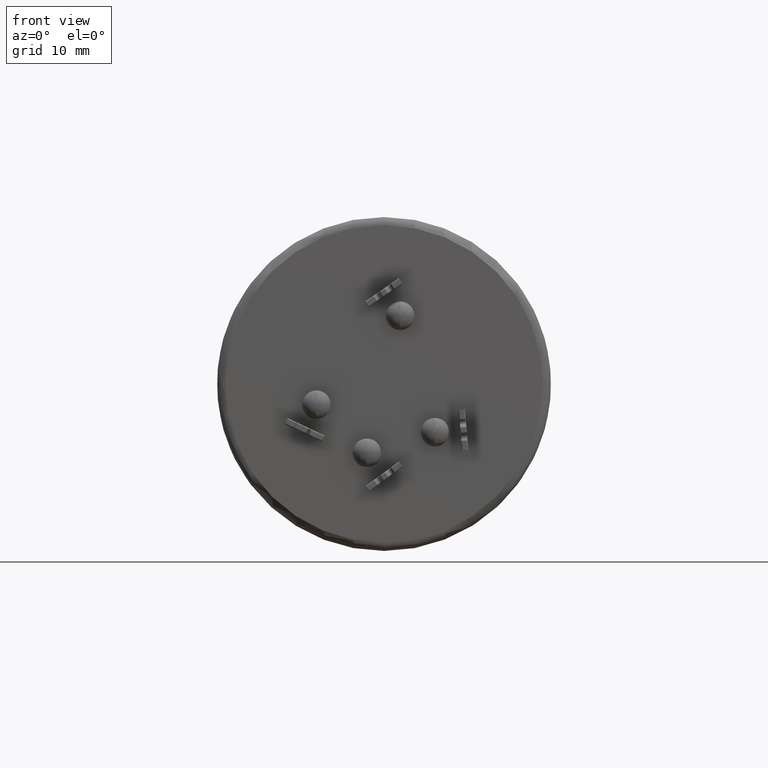
[diagram: clean part render]
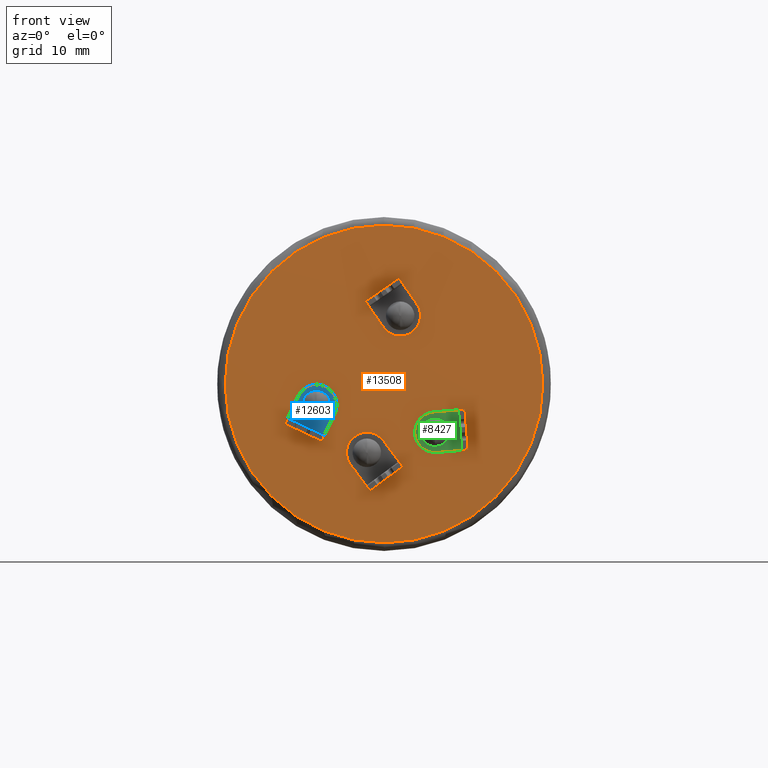
[diagram: same view with three faces highlighted in distinct colors, each labeled with its STEP entity id]
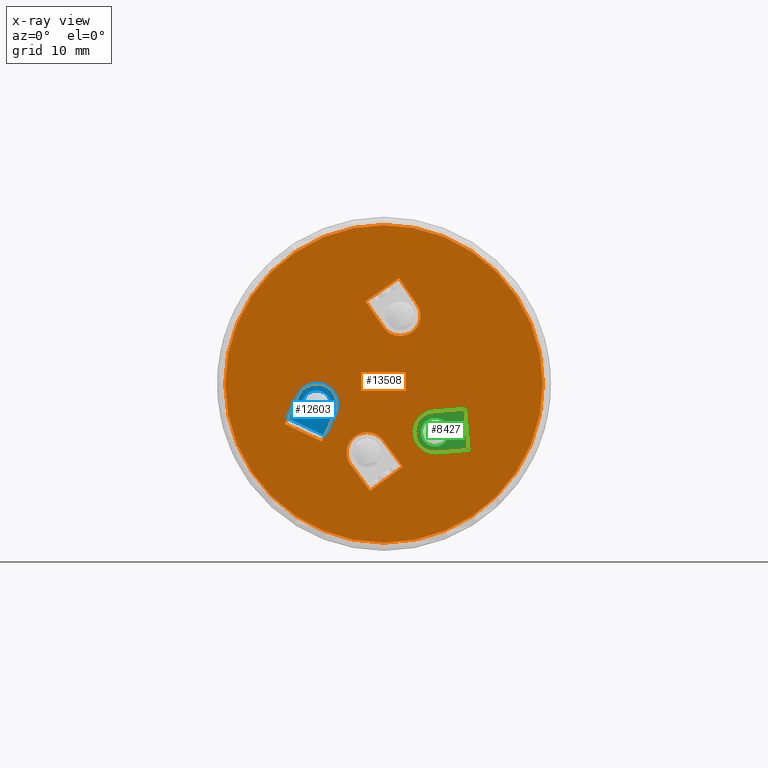
[diagram: x-ray of the same camera — body ghosted, the three highlighted faces saturated]
A machine part, front view with three faces highlighted in distinct colors.
The next image is the same camera in x-ray (body ghosted, the three faces saturated) — at least one of them is partly hidden behind the body in this view.
Their STEP definitions:

[orange] entity #13508 — the highlighted planar face has unit normal (0, 1, 0).
#131 = CARTESIAN_POINT ( 'NONE',  ( -0.06408212101408636300, 0.0000000000000000000, 6.957453593650186000 ) ) ;
#266 = CARTESIAN_POINT ( 'NONE',  ( 2.449293598294706500E-015, 0.0000000000000000000, -19.50000000000000000 ) ) ;
#387 = CARTESIAN_POINT ( 'NONE',  ( 6.472273971103110300, 0.0000000000000000000, -8.405985840910089400 ) ) ;
#410 = DIRECTION ( 'NONE',  ( 0.0000000000000000000, -1.000000000000000000, 0.0000000000000000000 ) ) ;
#431 = VECTOR ( 'NONE', #6212, 1000.000000000000100 ) ;
#448 = CARTESIAN_POINT ( 'NONE',  ( 6.264818621746156800, 0.0000000000000000000, -5.914608254508701500 ) ) ;
#458 = DIRECTION ( 'NONE',  ( -0.9965510345605536100, 0.0000000000000000000, -0.08298213974278138800 ) ) ;
#585 = CARTESIAN_POINT ( 'NONE',  ( 0.0000000000000000000, 0.0000000000000000000, 0.0000000000000000000 ) ) ;
#872 = ORIENTED_EDGE ( 'NONE', *, *, #6539, .T. ) ;
#947 = EDGE_CURVE ( 'NONE', #1280, #6693, #10238, .T. ) ;
#1214 = CARTESIAN_POINT ( 'NONE',  ( -7.652266703763484800, 0.0000000000000000000, -7.053288660947412600 ) ) ;
#1280 = VERTEX_POINT ( 'NONE', #3293 ) ;
#1334 = AXIS2_PLACEMENT_3D ( 'NONE', #448, #410, #6989 ) ;
#1336 = LINE ( 'NONE', #9434, #3736 ) ;
#1345 = VERTEX_POINT ( 'NONE', #10166 ) ;
#1599 = VERTEX_POINT ( 'NONE', #3064 ) ;
#1616 = DIRECTION ( 'NONE',  ( 0.0000000000000000000, -0.0000000000000000000, 1.000000000000000000 ) ) ;
#1706 = CARTESIAN_POINT ( 'NONE',  ( 1.827519730639549400, -0.009998749999999693600, 13.00516054748049300 ) ) ;
#1883 = CARTESIAN_POINT ( 'NONE',  ( 2.285341713860584300, 0.0000000000000000000, 12.34910920548319700 ) ) ;
#1938 = VECTOR ( 'NONE', #13261, 1000.000000000000000 ) ;
#2034 = FACE_BOUND ( 'NONE', #8239, .T. ) ;
#2051 = AXIS2_PLACEMENT_3D ( 'NONE', #8099, #3659, #1616 ) ;
#2066 = VERTEX_POINT ( 'NONE', #7197 ) ;
#2081 = EDGE_LOOP ( 'NONE', ( #10167, #8587 ) ) ;
#2098 = ORIENTED_EDGE ( 'NONE', *, *, #4695, .T. ) ;
#2108 = ORIENTED_EDGE ( 'NONE', *, *, #7376, .F. ) ;
#2181 = CARTESIAN_POINT ( 'NONE',  ( 10.34885749554366500, 0.0000000000000000000, -8.083185317310674000 ) ) ;
#2306 = EDGE_CURVE ( 'NONE', #3951, #14063, #8235, .T. ) ;
#2314 = DIRECTION ( 'NONE',  ( 0.0000000000000000000, -1.000000000000000000, 0.0000000000000000000 ) ) ;
#2320 = ORIENTED_EDGE ( 'NONE', *, *, #2598, .F. ) ;
#2327 = DIRECTION ( 'NONE',  ( -0.8043756352700843800, 0.0000000000000000000, -0.5941210629020387000 ) ) ;
#2479 = EDGE_CURVE ( 'NONE', #8894, #9044, #2771, .T. ) ;
#2598 = EDGE_CURVE ( 'NONE', #12933, #11965, #13540, .T. ) ;
#2631 = VECTOR ( 'NONE', #2977, 1000.000000000000100 ) ;
#2771 = LINE ( 'NONE', #12374, #7182 ) ;
#2977 = DIRECTION ( 'NONE',  ( -0.5941210629020401400, 0.0000000000000000000, 0.8043756352700832700 ) ) ;
#3054 = CARTESIAN_POINT ( 'NONE',  ( -2.096736182342360300, 0.0000000000000000000, -8.442727574712751700 ) ) ;
#3064 = CARTESIAN_POINT ( 'NONE',  ( 2.010939949443617100, -0.0000000000000000000, -9.764695884550336700 ) ) ;
#3127 = ORIENTED_EDGE ( 'NONE', *, *, #11157, .F. ) ;
#3247 = CARTESIAN_POINT ( 'NONE',  ( 2.309730510217753400, 0.0000000000000000000, -10.16222450795848300 ) ) ;
#3293 = CARTESIAN_POINT ( 'NONE',  ( -12.00403663422087200, 0.0000000000000000000, -4.558605531232906600 ) ) ;
#3443 = CARTESIAN_POINT ( 'NONE',  ( -7.481760901799101600, 0.0000000000000000000, -6.691449219820790400 ) ) ;
#3447 = EDGE_CURVE ( 'NONE', #10387, #8216, #10046, .T. ) ;
#3462 = CARTESIAN_POINT ( 'NONE',  ( 5.671779899656733900, -0.0000000000000000000, -7.678976297547496400 ) ) ;
#3607 = CIRCLE ( 'NONE', #10930, 2.518743273238326400 ) ;
#3646 = DIRECTION ( 'NONE',  ( -0.9965510345605536100, 0.0000000000000000000, -0.08298213974278047200 ) ) ;
#3659 = DIRECTION ( 'NONE',  ( 0.0000000000000000000, 1.000000000000000000, 0.0000000000000000000 ) ) ;
#3702 = CIRCLE ( 'NONE', #12365, 19.50000000000000000 ) ;
#3736 = VECTOR ( 'NONE', #4936, 1000.000000000000000 ) ;
#3785 = ORIENTED_EDGE ( 'NONE', *, *, #9891, .F. ) ;
#3817 = CARTESIAN_POINT ( 'NONE',  ( -0.06254256008456776600, 0.0000000000000000000, -6.957424917457657000 ) ) ;
#3859 = CARTESIAN_POINT ( 'NONE',  ( -2.281927337025110500, 0.0000000000000000000, 10.15327314390908800 ) ) ;
#3886 = EDGE_CURVE ( 'NONE', #2066, #13461, #3702, .T. ) ;
#3951 = VERTEX_POINT ( 'NONE', #3247 ) ;
#4060 = CARTESIAN_POINT ( 'NONE',  ( 0.0000000000000000000, 0.0000000000000000000, 0.0000000000000000000 ) ) ;
#4136 = LINE ( 'NONE', #6553, #12540 ) ;
#4138 = DIRECTION ( 'NONE',  ( 0.0000000000000000000, -1.000000000000000000, 0.0000000000000000000 ) ) ;
#4183 = LINE ( 'NONE', #8243, #5216 ) ;
#4404 = VECTOR ( 'NONE', #7159, 999.9999999999998900 ) ;
#4577 = CIRCLE ( 'NONE', #1334, 2.499999999999999600 ) ;
#4695 = EDGE_CURVE ( 'NONE', #10953, #11759, #10493, .T. ) ;
#4713 = EDGE_CURVE ( 'NONE', #1280, #10595, #4136, .T. ) ;
#4787 = EDGE_CURVE ( 'NONE', #14063, #5055, #4821, .T. ) ;
#4821 = LINE ( 'NONE', #11263, #1938 ) ;
#4936 = DIRECTION ( 'NONE',  ( -0.6008285975442571000, 0.0000000000000000000, 0.7993778808379683500 ) ) ;
#5055 = VERTEX_POINT ( 'NONE', #11773 ) ;
#5083 = FACE_BOUND ( 'NONE', #10452, .T. ) ;
#5151 = CARTESIAN_POINT ( 'NONE',  ( -1.715493642634970700, 0.0000000000000000000, -13.13530119906044100 ) ) ;
#5196 = ORIENTED_EDGE ( 'NONE', *, *, #947, .F. ) ;
#5216 = VECTOR ( 'NONE', #13711, 1000.000000000000100 ) ;
#5236 = CARTESIAN_POINT ( 'NONE',  ( 4.043655090115611200, 0.0000000000000000000, 9.808154385438138300 ) ) ;
#5430 = CIRCLE ( 'NONE', #12765, 2.500000000000002200 ) ;
#5431 = ORIENTED_EDGE ( 'NONE', *, *, #9255, .F. ) ;
#5563 = LINE ( 'NONE', #6461, #10723 ) ;
#5571 = CARTESIAN_POINT ( 'NONE',  ( -5.497527441997073400, -0.0000000000000000000, 7.921700554386986500 ) ) ;
#5595 = CIRCLE ( 'NONE', #6429, 19.50000000000000000 ) ;
#5620 = VECTOR ( 'NONE', #11403, 1000.000000000000100 ) ;
#5760 = EDGE_CURVE ( 'NONE', #5997, #13594, #12652, .T. ) ;
#5784 = CARTESIAN_POINT ( 'NONE',  ( -2.096736182342360300, 0.0000000000000000000, -5.923984301474424900 ) ) ;
#5825 = ORIENTED_EDGE ( 'NONE', *, *, #6042, .F. ) ;
#5844 = EDGE_LOOP ( 'NONE', ( #5431, #10585, #10145, #10497, #3785, #2320 ) ) ;
#5901 = DIRECTION ( 'NONE',  ( 0.0000000000000000000, -1.000000000000000000, 0.0000000000000000000 ) ) ;
#5958 = EDGE_CURVE ( 'NONE', #3951, #1599, #1336, .T. ) ;
#5968 = CARTESIAN_POINT ( 'NONE',  ( -2.096736182342360300, 0.0000000000000000000, -8.442727574712751700 ) ) ;
#5997 = VERTEX_POINT ( 'NONE', #3859 ) ;
#6002 = VERTEX_POINT ( 'NONE', #8233 ) ;
#6042 = EDGE_CURVE ( 'NONE', #12361, #9915, #5430, .T. ) ;
#6066 = ORIENTED_EDGE ( 'NONE', *, *, #10488, .F. ) ;
#6212 = DIRECTION ( 'NONE',  ( 0.5701401583575898000, 0.0000000000000000000, -0.8215474422259389000 ) ) ;
#6246 = VECTOR ( 'NONE', #14035, 1000.000000000000000 ) ;
#6368 = CARTESIAN_POINT ( 'NONE',  ( 7.323337316101660800, 0.0000000000000000000, 5.082273381310050000 ) ) ;
#6429 = AXIS2_PLACEMENT_3D ( 'NONE', #585, #7170, #10396 ) ;
#6461 = CARTESIAN_POINT ( 'NONE',  ( -3.538729696344269800, -0.0000000000000000000, 1.668973265905776100 ) ) ;
#6505 = ORIENTED_EDGE ( 'NONE', *, *, #3447, .F. ) ;
#6539 = EDGE_CURVE ( 'NONE', #13594, #1345, #7458, .T. ) ;
#6553 = CARTESIAN_POINT ( 'NONE',  ( -8.061005428766039300, -0.0000000000000000000, 3.801816954493660600 ) ) ;
#6607 = EDGE_CURVE ( 'NONE', #10953, #10387, #5563, .T. ) ;
#6609 = CIRCLE ( 'NONE', #6833, 2.500000033163329400 ) ;
#6619 = EDGE_CURVE ( 'NONE', #1345, #9915, #7800, .T. ) ;
#6626 = DIRECTION ( 'NONE',  ( 0.8215474422259387800, 0.0000000000000000000, 0.5701401583575900200 ) ) ;
#6638 = CARTESIAN_POINT ( 'NONE',  ( -8.286320270605701300, 0.0000000000000000000, -2.536639029759266700 ) ) ;
#6693 = VERTEX_POINT ( 'NONE', #8466 ) ;
#6833 = AXIS2_PLACEMENT_3D ( 'NONE', #13622, #5901, #7084 ) ;
#6989 = DIRECTION ( 'NONE',  ( 0.0000000000000000000, 0.0000000000000000000, -1.000000000000000000 ) ) ;
#7084 = DIRECTION ( 'NONE',  ( 0.0000000000000000000, 0.0000000000000000000, -1.000000000000000000 ) ) ;
#7156 = CARTESIAN_POINT ( 'NONE',  ( -10.54728443551130500, -0.0000000000000000000, -1.469848885996513300 ) ) ;
#7159 = DIRECTION ( 'NONE',  ( -0.4267765007266978700, 0.0000000000000000000, -0.9043571299146565500 ) ) ;
#7170 = DIRECTION ( 'NONE',  ( -0.0000000000000000000, -1.000000000000000000, -0.0000000000000000000 ) ) ;
#7182 = VECTOR ( 'NONE', #3646, 1000.000000000000000 ) ;
#7197 = CARTESIAN_POINT ( 'NONE',  ( 0.0000000000000000000, 0.0000000000000000000, 19.50000000000000000 ) ) ;
#7232 = CARTESIAN_POINT ( 'NONE',  ( -8.286320270605701300, 0.0000000000000000000, -0.03663899659593714700 ) ) ;
#7258 = CARTESIAN_POINT ( 'NONE',  ( -3.365395365941289600, -0.0000000000000000000, -2.485719587002766900 ) ) ;
#7314 = DIRECTION ( 'NONE',  ( 0.0000000000000000000, 0.0000000000000000000, -1.000000000000000000 ) ) ;
#7376 = EDGE_CURVE ( 'NONE', #6002, #9044, #4577, .T. ) ;
#7397 = CARTESIAN_POINT ( 'NONE',  ( 3.215600104971960700, 0.0000000000000000000, 2.231572589522097200 ) ) ;
#7458 = LINE ( 'NONE', #1883, #431 ) ;
#7501 = LINE ( 'NONE', #13548, #5620 ) ;
#7577 = VECTOR ( 'NONE', #11985, 999.9999999999998900 ) ;
#7585 = DIRECTION ( 'NONE',  ( 0.0000000000000000000, -1.000000000000000000, 0.0000000000000000000 ) ) ;
#7734 = ORIENTED_EDGE ( 'NONE', *, *, #6607, .F. ) ;
#7800 = LINE ( 'NONE', #6368, #6246 ) ;
#8099 = CARTESIAN_POINT ( 'NONE',  ( 0.0000000000000000000, 0.0000000000000000000, 0.0000000000000000000 ) ) ;
#8161 = ORIENTED_EDGE ( 'NONE', *, *, #13011, .F. ) ;
#8178 = EDGE_CURVE ( 'NONE', #8894, #8390, #4183, .T. ) ;
#8216 = VERTEX_POINT ( 'NONE', #7232 ) ;
#8233 = CARTESIAN_POINT ( 'NONE',  ( 6.057363272389348000, 0.0000000000000000000, -3.423230668107305700 ) ) ;
#8235 = LINE ( 'NONE', #3462, #13726 ) ;
#8239 = EDGE_LOOP ( 'NONE', ( #10641, #9800, #872, #10939, #5825 ) ) ;
#8243 = CARTESIAN_POINT ( 'NONE',  ( 9.609148309813411600, 0.0000000000000000000, 0.8001473684743736200 ) ) ;
#8295 = CARTESIAN_POINT ( 'NONE',  ( 0.3247984870163504500, -0.0000000000000000000, -3.900577512982283100 ) ) ;
#8390 = VERTEX_POINT ( 'NONE', #13238 ) ;
#8466 = CARTESIAN_POINT ( 'NONE',  ( -12.17474723451155100, -0.0000000000000000000, -4.920348383198779100 ) ) ;
#8587 = ORIENTED_EDGE ( 'NONE', *, *, #13588, .T. ) ;
#8640 = CARTESIAN_POINT ( 'NONE',  ( -3.542103218458518800, 0.0000000000000000000, 1.669108121611721600 ) ) ;
#8729 = DIRECTION ( 'NONE',  ( 0.4265687377175767000, 0.0000000000000000000, 0.9044551464843534300 ) ) ;
#8746 = ORIENTED_EDGE ( 'NONE', *, *, #4713, .T. ) ;
#8894 = VERTEX_POINT ( 'NONE', #2181 ) ;
#9044 = VERTEX_POINT ( 'NONE', #387 ) ;
#9208 = CARTESIAN_POINT ( 'NONE',  ( -6.025356105700097100, -0.0000000000000000000, -3.603429173522018700 ) ) ;
#9255 = EDGE_CURVE ( 'NONE', #1599, #12933, #12063, .T. ) ;
#9434 = CARTESIAN_POINT ( 'NONE',  ( -3.404876235687164700, -0.0000000000000000000, -2.559173905781808100 ) ) ;
#9484 = DIRECTION ( 'NONE',  ( 0.0000000000000000000, 0.0000000000000000000, -1.000000000000000000 ) ) ;
#9662 = AXIS2_PLACEMENT_3D ( 'NONE', #5968, #10738, #7314 ) ;
#9725 = CARTESIAN_POINT ( 'NONE',  ( 1.989786484550760000, 0.0000000000000000000, 8.382803989544161300 ) ) ;
#9739 = LINE ( 'NONE', #8295, #13677 ) ;
#9760 = DIRECTION ( 'NONE',  ( 0.4265687377175766400, 0.0000000000000000000, 0.9044551464843534300 ) ) ;
#9800 = ORIENTED_EDGE ( 'NONE', *, *, #5760, .T. ) ;
#9891 = EDGE_CURVE ( 'NONE', #11965, #5055, #3607, .T. ) ;
#9915 = VERTEX_POINT ( 'NONE', #5236 ) ;
#10046 = CIRCLE ( 'NONE', #12714, 2.500000033163329400 ) ;
#10094 = LINE ( 'NONE', #7397, #10426 ) ;
#10145 = ORIENTED_EDGE ( 'NONE', *, *, #2306, .T. ) ;
#10164 = PLANE ( 'NONE',  #2051 ) ;
#10166 = CARTESIAN_POINT ( 'NONE',  ( 2.283631857325621400, -0.007499999999999718700, 12.34792259369974200 ) ) ;
#10167 = ORIENTED_EDGE ( 'NONE', *, *, #3886, .T. ) ;
#10238 = LINE ( 'NONE', #10428, #4404 ) ;
#10387 = VERTEX_POINT ( 'NONE', #9208 ) ;
#10396 = DIRECTION ( 'NONE',  ( 0.0000000000000000000, 0.0000000000000000000, 1.000000000000000000 ) ) ;
#10426 = VECTOR ( 'NONE', #10620, 999.9999999999998900 ) ;
#10428 = CARTESIAN_POINT ( 'NONE',  ( -8.058211263844391700, 0.0000000000000000000, 3.802762306550855800 ) ) ;
#10452 = EDGE_LOOP ( 'NONE', ( #7734, #2098, #6066, #5196, #8746, #3127, #6505 ) ) ;
#10488 = EDGE_CURVE ( 'NONE', #6693, #11759, #7501, .T. ) ;
#10493 = LINE ( 'NONE', #8640, #7577 ) ;
#10497 = ORIENTED_EDGE ( 'NONE', *, *, #4787, .T. ) ;
#10585 = ORIENTED_EDGE ( 'NONE', *, *, #5958, .F. ) ;
#10595 = VERTEX_POINT ( 'NONE', #7156 ) ;
#10620 = DIRECTION ( 'NONE',  ( 0.5701401583575894700, 0.0000000000000000000, -0.8215474422259392300 ) ) ;
#10641 = ORIENTED_EDGE ( 'NONE', *, *, #13150, .F. ) ;
#10723 = VECTOR ( 'NONE', #9760, 1000.000000000000100 ) ;
#10738 = DIRECTION ( 'NONE',  ( 0.0000000000000000000, -1.000000000000000000, 0.0000000000000000000 ) ) ;
#10879 = EDGE_LOOP ( 'NONE', ( #8161, #10979, #10895, #2108 ) ) ;
#10895 = ORIENTED_EDGE ( 'NONE', *, *, #2479, .T. ) ;
#10930 = AXIS2_PLACEMENT_3D ( 'NONE', #3054, #4138, #11811 ) ;
#10939 = ORIENTED_EDGE ( 'NONE', *, *, #6619, .T. ) ;
#10942 = FACE_OUTER_BOUND ( 'NONE', #2081, .T. ) ;
#10953 = VERTEX_POINT ( 'NONE', #3443 ) ;
#10979 = ORIENTED_EDGE ( 'NONE', *, *, #8178, .F. ) ;
#11131 = VECTOR ( 'NONE', #6626, 1000.000000000000100 ) ;
#11157 = EDGE_CURVE ( 'NONE', #8216, #10595, #6609, .T. ) ;
#11263 = CARTESIAN_POINT ( 'NONE',  ( -7.387273542291705300, -0.0000000000000000000, -5.456324901512950900 ) ) ;
#11403 = DIRECTION ( 'NONE',  ( 0.9044551464843534300, 0.0000000000000000000, -0.4265687377175765800 ) ) ;
#11759 = VERTEX_POINT ( 'NONE', #1214 ) ;
#11773 = CARTESIAN_POINT ( 'NONE',  ( -3.835542363001984300, 0.0000000000000000000, -10.26498462095601400 ) ) ;
#11797 = FACE_BOUND ( 'NONE', #10879, .T. ) ;
#11811 = DIRECTION ( 'NONE',  ( 0.0000000000000000000, 0.0000000000000000000, -1.000000000000000000 ) ) ;
#11965 = VERTEX_POINT ( 'NONE', #5784 ) ;
#11985 = DIRECTION ( 'NONE',  ( -0.4262644920453044800, 0.0000000000000000000, -0.9045985755136687300 ) ) ;
#12063 = LINE ( 'NONE', #7258, #2631 ) ;
#12172 = DIRECTION ( 'NONE',  ( 0.0000000000000000000, 0.0000000000000000000, -1.000000000000000000 ) ) ;
#12361 = VERTEX_POINT ( 'NONE', #131 ) ;
#12365 = AXIS2_PLACEMENT_3D ( 'NONE', #4060, #13969, #14007 ) ;
#12374 = CARTESIAN_POINT ( 'NONE',  ( 0.7397091857302486900, -0.0000000000000000000, -8.883332685785045900 ) ) ;
#12540 = VECTOR ( 'NONE', #8729, 1000.000000000000000 ) ;
#12652 = LINE ( 'NONE', #5571, #11131 ) ;
#12714 = AXIS2_PLACEMENT_3D ( 'NONE', #6638, #2314, #12172 ) ;
#12765 = AXIS2_PLACEMENT_3D ( 'NONE', #9725, #7585, #9484 ) ;
#12933 = VERTEX_POINT ( 'NONE', #3817 ) ;
#13011 = EDGE_CURVE ( 'NONE', #8390, #6002, #9739, .T. ) ;
#13150 = EDGE_CURVE ( 'NONE', #5997, #12361, #10094, .T. ) ;
#13238 = CARTESIAN_POINT ( 'NONE',  ( 9.933946796829758300, 0.0000000000000000000, -3.100430144507904100 ) ) ;
#13261 = DIRECTION ( 'NONE',  ( -0.5941210629020390300, 0.0000000000000000000, 0.8043756352700841500 ) ) ;
#13461 = VERTEX_POINT ( 'NONE', #266 ) ;
#13508 = ADVANCED_FACE ( 'NONE', ( #2034, #14010, #10942, #5083, #11797 ), #10164, .F. ) ;
#13540 = CIRCLE ( 'NONE', #9662, 2.518743273238326400 ) ;
#13548 = CARTESIAN_POINT ( 'NONE',  ( -4.113658696039626900, -0.0000000000000000000, -8.722204534774206800 ) ) ;
#13588 = EDGE_CURVE ( 'NONE', #13461, #2066, #5595, .T. ) ;
#13594 = VERTEX_POINT ( 'NONE', #1706 ) ;
#13622 = CARTESIAN_POINT ( 'NONE',  ( -8.286320270605701300, 0.0000000000000000000, -2.536639029759266700 ) ) ;
#13677 = VECTOR ( 'NONE', #458, 999.9999999999998900 ) ;
#13711 = DIRECTION ( 'NONE',  ( -0.08298213974278069400, 0.0000000000000000000, 0.9965510345605536100 ) ) ;
#13726 = VECTOR ( 'NONE', #2327, 1000.000000000000000 ) ;
#13969 = DIRECTION ( 'NONE',  ( -0.0000000000000000000, -1.000000000000000000, -0.0000000000000000000 ) ) ;
#14007 = DIRECTION ( 'NONE',  ( 0.0000000000000000000, 0.0000000000000000000, 1.000000000000000000 ) ) ;
#14010 = FACE_BOUND ( 'NONE', #5844, .T. ) ;
#14035 = DIRECTION ( 'NONE',  ( 0.5701401583575896900, 0.0000000000000000000, -0.8215474422259390100 ) ) ;
#14063 = VERTEX_POINT ( 'NONE', #5151 ) ;

[blue] entity #12603 — the highlighted planar face has unit normal (0, -1, 0).
#93 = ORIENTED_EDGE ( 'NONE', *, *, #4311, .F. ) ;
#103 = VERTEX_POINT ( 'NONE', #13936 ) ;
#234 = VERTEX_POINT ( 'NONE', #978 ) ;
#372 = DIRECTION ( 'NONE',  ( 0.0000000000000000000, 0.0000000000000000000, -1.000000000000000000 ) ) ;
#789 = DIRECTION ( 'NONE',  ( 0.4265687377175767000, 0.0000000000000000000, 0.9044551464843534300 ) ) ;
#978 = CARTESIAN_POINT ( 'NONE',  ( -7.311133402209836000, -0.009999999999999694900, -6.329667151680946600 ) ) ;
#1035 = CARTESIAN_POINT ( 'NONE',  ( -11.83348944847778700, -0.01000000000000000000, -4.196785584624329600 ) ) ;
#1064 = FACE_OUTER_BOUND ( 'NONE', #12715, .T. ) ;
#1216 = CARTESIAN_POINT ( 'NONE',  ( -10.54728443551130500, -0.01000000000000000000, -1.469848885996513300 ) ) ;
#1263 = CIRCLE ( 'NONE', #2475, 1.749999999999999800 ) ;
#1391 = EDGE_CURVE ( 'NONE', #3994, #2301, #6932, .T. ) ;
#1452 = VECTOR ( 'NONE', #5220, 1000.000000000000100 ) ;
#1594 = AXIS2_PLACEMENT_3D ( 'NONE', #8755, #6437, #6477 ) ;
#1632 = DIRECTION ( 'NONE',  ( 0.0000000000000000000, -0.0000000000000000000, -1.000000000000000000 ) ) ;
#1887 = VECTOR ( 'NONE', #6800, 1000.000000000000000 ) ;
#2229 = LINE ( 'NONE', #1035, #1887 ) ;
#2301 = VERTEX_POINT ( 'NONE', #1216 ) ;
#2475 = AXIS2_PLACEMENT_3D ( 'NONE', #13553, #4742, #4779 ) ;
#2562 = CARTESIAN_POINT ( 'NONE',  ( -8.286320270605701300, -0.01000000000000000000, -0.03663899659593714700 ) ) ;
#3165 = DIRECTION ( 'NONE',  ( 0.0000000000000000000, 0.0000000000000000000, -1.000000000000000000 ) ) ;
#3253 = VERTEX_POINT ( 'NONE', #9416 ) ;
#3621 = ORIENTED_EDGE ( 'NONE', *, *, #10018, .F. ) ;
#3994 = VERTEX_POINT ( 'NONE', #6386 ) ;
#4311 = EDGE_CURVE ( 'NONE', #12754, #103, #1263, .T. ) ;
#4742 = DIRECTION ( 'NONE',  ( 0.0000000000000000000, -1.000000000000000000, 0.0000000000000000000 ) ) ;
#4779 = DIRECTION ( 'NONE',  ( 0.0000000000000000000, 0.0000000000000000000, -1.000000000000000000 ) ) ;
#5081 = CARTESIAN_POINT ( 'NONE',  ( -8.061005428766039300, -0.01000000000000000000, 3.801816954493660600 ) ) ;
#5220 = DIRECTION ( 'NONE',  ( 0.4265687377175766400, 0.0000000000000000000, 0.9044551464843534300 ) ) ;
#5435 = ORIENTED_EDGE ( 'NONE', *, *, #12503, .T. ) ;
#5787 = CIRCLE ( 'NONE', #1594, 2.500000033163329400 ) ;
#5812 = CARTESIAN_POINT ( 'NONE',  ( -8.286320270605701300, -0.01000000000000000000, -2.536639029759266700 ) ) ;
#5850 = AXIS2_PLACEMENT_3D ( 'NONE', #5812, #13489, #372 ) ;
#6142 = CARTESIAN_POINT ( 'NONE',  ( 0.0000000000000000000, -0.01000000000000000000, 0.0000000000000000000 ) ) ;
#6386 = CARTESIAN_POINT ( 'NONE',  ( -11.83340913463160700, -0.01000000000000000000, -4.196823463093062800 ) ) ;
#6437 = DIRECTION ( 'NONE',  ( 0.0000000000000000000, -1.000000000000000000, 0.0000000000000000000 ) ) ;
#6477 = DIRECTION ( 'NONE',  ( 0.0000000000000000000, 0.0000000000000000000, -1.000000000000000000 ) ) ;
#6800 = DIRECTION ( 'NONE',  ( -0.9044551464843535400, -1.225484173697702400E-016, 0.4265687377175764700 ) ) ;
#6932 = LINE ( 'NONE', #5081, #13471 ) ;
#7219 = ORIENTED_EDGE ( 'NONE', *, *, #13219, .T. ) ;
#7616 = AXIS2_PLACEMENT_3D ( 'NONE', #6142, #13823, #1632 ) ;
#8612 = LINE ( 'NONE', #13950, #1452 ) ;
#8686 = ORIENTED_EDGE ( 'NONE', *, *, #1391, .F. ) ;
#8755 = CARTESIAN_POINT ( 'NONE',  ( -8.286320270605701300, -0.01000000000000000000, -2.536639029759266700 ) ) ;
#9061 = ORIENTED_EDGE ( 'NONE', *, *, #14160, .F. ) ;
#9374 = AXIS2_PLACEMENT_3D ( 'NONE', #9746, #11782, #3165 ) ;
#9416 = CARTESIAN_POINT ( 'NONE',  ( -6.025356105700097100, -0.01000000000000000000, -3.603429173522018700 ) ) ;
#9746 = CARTESIAN_POINT ( 'NONE',  ( -8.286320270605701300, -0.01000000000000000000, -2.536639029759266700 ) ) ;
#9999 = CARTESIAN_POINT ( 'NONE',  ( -8.286320270605701300, -0.01000000000000000000, -0.7866390297592666900 ) ) ;
#10018 = EDGE_CURVE ( 'NONE', #234, #3994, #2229, .T. ) ;
#10413 = VERTEX_POINT ( 'NONE', #2562 ) ;
#11628 = PLANE ( 'NONE',  #7616 ) ;
#11674 = EDGE_CURVE ( 'NONE', #234, #3253, #8612, .T. ) ;
#11782 = DIRECTION ( 'NONE',  ( 0.0000000000000000000, -1.000000000000000000, 0.0000000000000000000 ) ) ;
#12086 = CIRCLE ( 'NONE', #9374, 1.749999999999999800 ) ;
#12375 = FACE_BOUND ( 'NONE', #12539, .T. ) ;
#12503 = EDGE_CURVE ( 'NONE', #3253, #10413, #13047, .T. ) ;
#12539 = EDGE_LOOP ( 'NONE', ( #93, #9061 ) ) ;
#12603 = ADVANCED_FACE ( 'NONE', ( #1064, #12375 ), #11628, .T. ) ;
#12715 = EDGE_LOOP ( 'NONE', ( #3621, #12834, #5435, #7219, #8686 ) ) ;
#12754 = VERTEX_POINT ( 'NONE', #9999 ) ;
#12834 = ORIENTED_EDGE ( 'NONE', *, *, #11674, .T. ) ;
#13047 = CIRCLE ( 'NONE', #5850, 2.500000033163329400 ) ;
#13219 = EDGE_CURVE ( 'NONE', #10413, #2301, #5787, .T. ) ;
#13471 = VECTOR ( 'NONE', #789, 1000.000000000000000 ) ;
#13489 = DIRECTION ( 'NONE',  ( 0.0000000000000000000, -1.000000000000000000, 0.0000000000000000000 ) ) ;
#13553 = CARTESIAN_POINT ( 'NONE',  ( -8.286320270605701300, -0.01000000000000000000, -2.536639029759266700 ) ) ;
#13823 = DIRECTION ( 'NONE',  ( 0.0000000000000000000, -1.000000000000000000, 0.0000000000000000000 ) ) ;
#13936 = CARTESIAN_POINT ( 'NONE',  ( -8.286320270605701300, -0.01000000000000000000, -4.286639029759266300 ) ) ;
#13950 = CARTESIAN_POINT ( 'NONE',  ( -3.538729696344269800, -0.01000000000000000000, 1.668973265905776100 ) ) ;
#14160 = EDGE_CURVE ( 'NONE', #103, #12754, #12086, .T. ) ;

[green] entity #8427 — the highlighted planar face has unit normal (0, -1, 0).
#20 = EDGE_CURVE ( 'NONE', #683, #965, #11821, .T. ) ;
#48 = VERTEX_POINT ( 'NONE', #809 ) ;
#253 = FACE_OUTER_BOUND ( 'NONE', #10699, .T. ) ;
#683 = VERTEX_POINT ( 'NONE', #10036 ) ;
#694 = ORIENTED_EDGE ( 'NONE', *, *, #3513, .F. ) ;
#711 = DIRECTION ( 'NONE',  ( -0.9965510345605536100, 0.0000000000000000000, -0.08298213974278138800 ) ) ;
#804 = EDGE_CURVE ( 'NONE', #4927, #9931, #5084, .T. ) ;
#809 = CARTESIAN_POINT ( 'NONE',  ( 6.472273971103109400, -0.01000000000000000000, -8.405985840910091200 ) ) ;
#965 = VERTEX_POINT ( 'NONE', #7106 ) ;
#1006 = DIRECTION ( 'NONE',  ( 0.0000000000000000000, -1.000000000000000000, 0.0000000000000000000 ) ) ;
#2189 = LINE ( 'NONE', #4045, #8815 ) ;
#2483 = ORIENTED_EDGE ( 'NONE', *, *, #2701, .F. ) ;
#2685 = CARTESIAN_POINT ( 'NONE',  ( 6.264818621746156800, -0.01000000000000000000, -4.164608254508700600 ) ) ;
#2701 = EDGE_CURVE ( 'NONE', #9931, #4927, #7350, .T. ) ;
#2876 = LINE ( 'NONE', #3405, #3895 ) ;
#3094 = EDGE_LOOP ( 'NONE', ( #5227, #2483 ) ) ;
#3170 = DIRECTION ( 'NONE',  ( 0.0000000000000000000, 0.0000000000000000000, -1.000000000000000000 ) ) ;
#3405 = CARTESIAN_POINT ( 'NONE',  ( 0.7397091857302486900, -0.01000000000000000000, -8.883332685785045900 ) ) ;
#3449 = DIRECTION ( 'NONE',  ( -0.9965510345605536100, 0.0000000000000000000, -0.08298213974278047200 ) ) ;
#3513 = EDGE_CURVE ( 'NONE', #7670, #48, #2876, .T. ) ;
#3872 = DIRECTION ( 'NONE',  ( 0.0000000000000000000, -1.000000000000000000, 0.0000000000000000000 ) ) ;
#3895 = VECTOR ( 'NONE', #3449, 1000.000000000000000 ) ;
#3912 = CARTESIAN_POINT ( 'NONE',  ( 10.34885749554366400, -0.01000000000000000000, -8.083185317310674000 ) ) ;
#4045 = CARTESIAN_POINT ( 'NONE',  ( 9.609148309813411600, -0.01000000000000000000, 0.8001473684743736200 ) ) ;
#4927 = VERTEX_POINT ( 'NONE', #2685 ) ;
#5033 = FACE_BOUND ( 'NONE', #3094, .T. ) ;
#5077 = DIRECTION ( 'NONE',  ( -0.08298213974278069400, 0.0000000000000000000, 0.9965510345605536100 ) ) ;
#5084 = CIRCLE ( 'NONE', #9057, 1.749999999999999800 ) ;
#5227 = ORIENTED_EDGE ( 'NONE', *, *, #804, .F. ) ;
#5352 = CARTESIAN_POINT ( 'NONE',  ( 6.264818621746156800, -0.01000000000000000000, -5.914608254508700600 ) ) ;
#6400 = CARTESIAN_POINT ( 'NONE',  ( 6.264818621746156800, -0.01000000000000000000, -5.914608254508701500 ) ) ;
#7044 = DIRECTION ( 'NONE',  ( 0.0000000000000000000, 0.0000000000000000000, -1.000000000000000000 ) ) ;
#7106 = CARTESIAN_POINT ( 'NONE',  ( 6.057363272389348000, -0.01000000000000000000, -3.423230668107311000 ) ) ;
#7350 = CIRCLE ( 'NONE', #10128, 1.749999999999999800 ) ;
#7561 = DIRECTION ( 'NONE',  ( 0.0000000000000000000, -1.000000000000000000, 0.0000000000000000000 ) ) ;
#7670 = VERTEX_POINT ( 'NONE', #3912 ) ;
#7865 = EDGE_CURVE ( 'NONE', #7670, #683, #2189, .T. ) ;
#8069 = CARTESIAN_POINT ( 'NONE',  ( 6.264818621746156800, -0.01000000000000000000, -5.914608254508700600 ) ) ;
#8359 = ORIENTED_EDGE ( 'NONE', *, *, #20, .T. ) ;
#8427 = ADVANCED_FACE ( 'NONE', ( #253, #5033 ), #8751, .T. ) ;
#8751 = PLANE ( 'NONE',  #9204 ) ;
#8815 = VECTOR ( 'NONE', #5077, 1000.000000000000100 ) ;
#9057 = AXIS2_PLACEMENT_3D ( 'NONE', #8069, #3872, #7044 ) ;
#9093 = ORIENTED_EDGE ( 'NONE', *, *, #9349, .T. ) ;
#9204 = AXIS2_PLACEMENT_3D ( 'NONE', #12007, #13139, #9908 ) ;
#9349 = EDGE_CURVE ( 'NONE', #965, #48, #10492, .T. ) ;
#9706 = DIRECTION ( 'NONE',  ( 0.0000000000000000000, 0.0000000000000000000, -1.000000000000000000 ) ) ;
#9908 = DIRECTION ( 'NONE',  ( 0.0000000000000000000, -0.0000000000000000000, -1.000000000000000000 ) ) ;
#9931 = VERTEX_POINT ( 'NONE', #12960 ) ;
#10036 = CARTESIAN_POINT ( 'NONE',  ( 9.933946796829758300, -0.01000000000000000000, -3.100430144507904100 ) ) ;
#10064 = AXIS2_PLACEMENT_3D ( 'NONE', #6400, #1006, #3170 ) ;
#10128 = AXIS2_PLACEMENT_3D ( 'NONE', #5352, #7561, #9706 ) ;
#10492 = CIRCLE ( 'NONE', #10064, 2.499999999999999600 ) ;
#10699 = EDGE_LOOP ( 'NONE', ( #8359, #9093, #694, #12108 ) ) ;
#11149 = VECTOR ( 'NONE', #711, 999.9999999999998900 ) ;
#11821 = LINE ( 'NONE', #13884, #11149 ) ;
#12007 = CARTESIAN_POINT ( 'NONE',  ( 0.0000000000000000000, -0.01000000000000000000, 0.0000000000000000000 ) ) ;
#12108 = ORIENTED_EDGE ( 'NONE', *, *, #7865, .T. ) ;
#12960 = CARTESIAN_POINT ( 'NONE',  ( 6.264818621746156800, -0.01000000000000000000, -7.664608254508700600 ) ) ;
#13139 = DIRECTION ( 'NONE',  ( 0.0000000000000000000, -1.000000000000000000, 0.0000000000000000000 ) ) ;
#13884 = CARTESIAN_POINT ( 'NONE',  ( 0.3247984870163504500, -0.01000000000000000000, -3.900577512982283100 ) ) ;